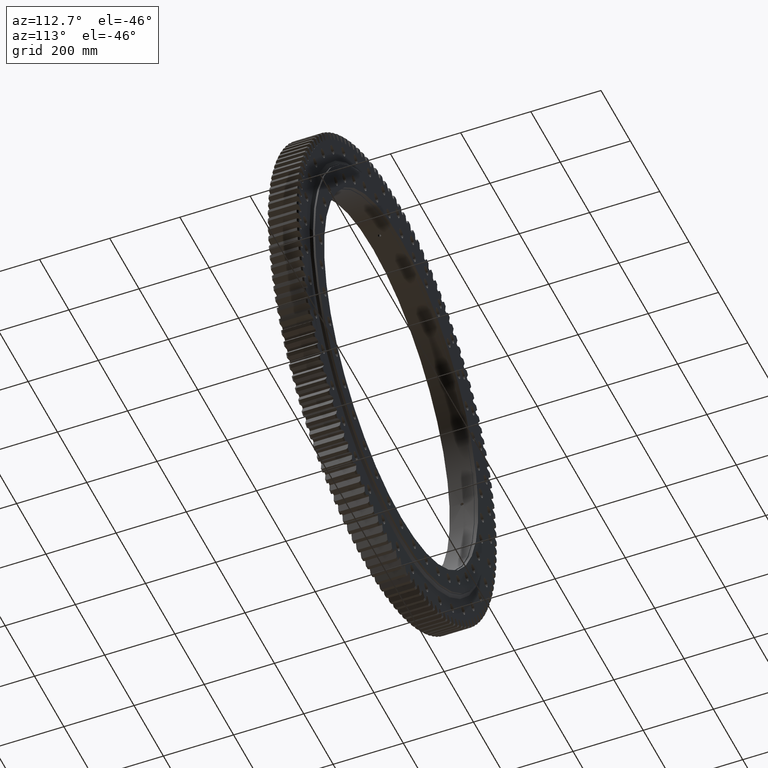
[diagram: clean part render]
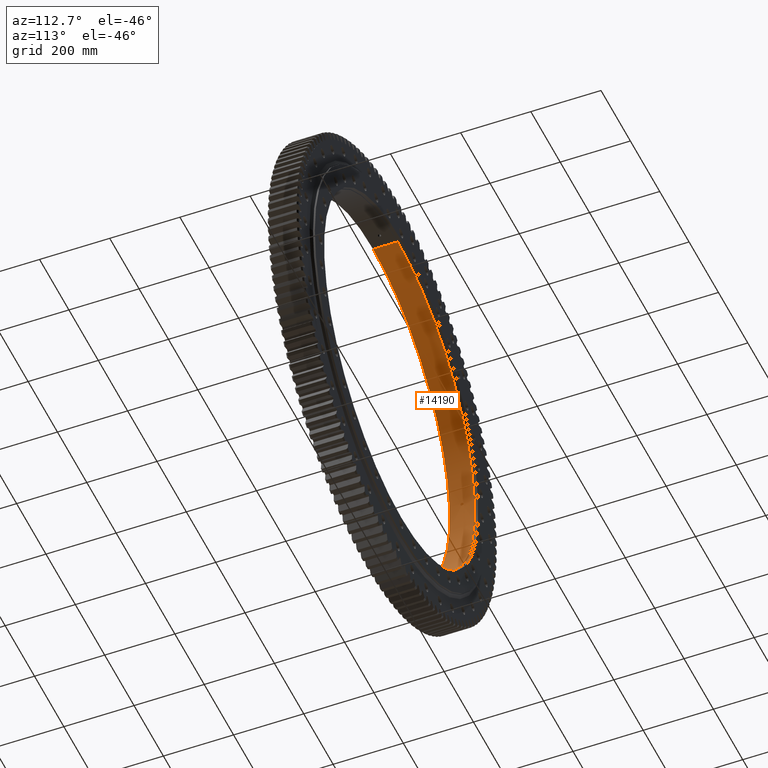
[diagram: same view with one face highlighted and labeled with its STEP entity id]
A machine part, auxiliary view. The second image highlights one B-rep face of the part: STEP entity #14190.
In plain terms, the highlighted cylindrical surface (partial cylindrical patch) has radius 522.5 mm, axis along (-0, 1, -0).
Its self-contained STEP definition (entity closure, byte-faithful):
#101 = CARTESIAN_POINT ( 'NONE',  ( -521.2230541935391600, 7.982461642902915100E-009, 36.50722910820498900 ) ) ;
#107 = VECTOR ( 'NONE', #29542, 1000.000000000000000 ) ;
#386 = VERTEX_POINT ( 'NONE', #101 ) ;
#965 = VERTEX_POINT ( 'NONE', #32015 ) ;
#972 = CARTESIAN_POINT ( 'NONE',  ( -42.43695594755188000, -4.271335784517487100, -520.7738753571798000 ) ) ;
#1247 = CARTESIAN_POINT ( 'NONE',  ( -521.0615364433853100, -3.904565419333106300, 38.74513019764189900 ) ) ;
#1378 = B_SPLINE_CURVE_WITH_KNOTS ( 'NONE', 3,
 ( #9614, #17718, #9475, #26800, #31847, #10021, #8146, #3492, #23364, #23498, #20928, #1247, #15079, #2290, #3865, #35615, #6444, #18939, #29808, #25698, #21770, #5953, #16173, #34088, #11863, #27575, #6089, #19968, #8376, #7038, #32823, #27871, #5612, #19335 ),
 .UNSPECIFIED., .F., .F.,
 ( 4, 2, 2, 2, 2, 2, 2, 2, 2, 2, 2, 2, 2, 2, 2, 2, 4 ),
 ( 0.01406912273268070900, 0.01494824441291817800, 0.01582736609315564900, 0.01670648777339311900, 0.01758560945363058700, 0.01846473113386805700, 0.01934385281410552800, 0.02022297449434299500, 0.02110209617458046500, 0.02198121785481793600, 0.02286033953505540300, 0.02373946121529287700, 0.02461858289553034400, 0.02549770457576781500, 0.02637682625600528500, 0.02725594793624275300, 0.02813506961648022300 ),
 .UNSPECIFIED. ) ;
#1535 = ORIENTED_EDGE ( 'NONE', *, *, #28585, .F. ) ;
#1562 = VECTOR ( 'NONE', #14069, 1000.000000000000000 ) ;
#2264 = EDGE_CURVE ( 'NONE', #30278, #18763, #12386, .T. ) ;
#2290 = CARTESIAN_POINT ( 'NONE',  ( -521.0014333689825900, -4.268830166289385300, 39.54529593804647200 ) ) ;
#2321 = EDGE_CURVE ( 'NONE', #15021, #34153, #30546, .T. ) ;
#2519 = CARTESIAN_POINT ( 'NONE',  ( 0.0000000000000000000, 34.99999999999993600, 522.5000000000000000 ) ) ;
#2521 = ORIENTED_EDGE ( 'NONE', *, *, #9805, .F. ) ;
#2629 = CARTESIAN_POINT ( 'NONE',  ( -520.6666234639387800, 3.576389863555923900, 43.73302788041540600 ) ) ;
#2740 = CARTESIAN_POINT ( 'NONE',  ( 0.0000000000000000000, -35.00000000000004300, 522.5000000000000000 ) ) ;
#2882 = CARTESIAN_POINT ( 'NONE',  ( 6.398779525544920300E-014, 31.02910628019322900, -522.5000000000000000 ) ) ;
#2991 = AXIS2_PLACEMENT_3D ( 'NONE', #13594, #3731, #4142 ) ;
#3055 = CARTESIAN_POINT ( 'NONE',  ( -38.25896087370888700, 3.578755136296426300, -521.0974586145877100 ) ) ;
#3283 = CARTESIAN_POINT ( 'NONE',  ( -36.73657784999501500, -1.449885485798992700, -521.2069516081423900 ) ) ;
#3492 = CARTESIAN_POINT ( 'NONE',  ( -521.1578291912394400, -2.745437740084375500, 37.42718471581505200 ) ) ;
#3731 = DIRECTION ( 'NONE',  ( -0.0000000000000000000, 1.000000000000000000, -2.727064569436389700E-017 ) ) ;
#3865 = CARTESIAN_POINT ( 'NONE',  ( -520.9797051835529400, -4.355728621484212600, 39.83063518860459600 ) ) ;
#3974 = CYLINDRICAL_SURFACE ( 'NONE', #2991, 522.5000000000000000 ) ;
#4142 = DIRECTION ( 'NONE',  ( 0.0000000000000000000, 2.656035944079321900E-017, 1.000000000000000000 ) ) ;
#4162 = CARTESIAN_POINT ( 'NONE',  ( -521.2230541935390400, 0.2936963170855738100, 36.50722910820499600 ) ) ;
#4188 = EDGE_CURVE ( 'NONE', #965, #386, #20767, .T. ) ;
#4697 = CARTESIAN_POINT ( 'NONE',  ( -40.40413346531357800, -4.470445865567148400, -520.9355418010818500 ) ) ;
#4778 = DIRECTION ( 'NONE',  ( 0.0000000000000000000, -1.000000000000000000, 0.0000000000000000000 ) ) ;
#5207 = CARTESIAN_POINT ( 'NONE',  ( 6.398779525544920300E-014, 34.99999999999993600, -522.5000000000000000 ) ) ;
#5612 = CARTESIAN_POINT ( 'NONE',  ( -520.5169223319884400, -0.2972598238607380700, 45.47948511180317900 ) ) ;
#5953 = CARTESIAN_POINT ( 'NONE',  ( -520.7292588011807800, -4.045623300547011200, 42.98096686910074700 ) ) ;
#6089 = CARTESIAN_POINT ( 'NONE',  ( -520.5967422455598800, -2.750358737038866200, 44.55680646927457600 ) ) ;
#6411 = CARTESIAN_POINT ( 'NONE',  ( -521.0974586145874800, 3.578755136296427200, 38.25896087371071300 ) ) ;
#6444 = CARTESIAN_POINT ( 'NONE',  ( -520.9128803760135000, -4.499748642551630900, 40.69532020410855500 ) ) ;
#6591 = CARTESIAN_POINT ( 'NONE',  ( -520.9796640727834100, 4.355941762590147100, 39.83118006561830500 ) ) ;
#7038 = CARTESIAN_POINT ( 'NONE',  ( -520.5370688136981700, -1.455748788596486600, 45.24845448250594200 ) ) ;
#7118 = CARTESIAN_POINT ( 'NONE',  ( -520.6124886286862600, 2.974981557475645700, 44.37262444089501700 ) ) ;
#7155 = ORIENTED_EDGE ( 'NONE', *, *, #17833, .T. ) ;
#7179 = CARTESIAN_POINT ( 'NONE',  ( -43.95882320256842500, 3.390113386120974700, -520.6475919262198900 ) ) ;
#7353 = CARTESIAN_POINT ( 'NONE',  ( -36.50722910820316300, 7.982461642902911800E-009, -521.2230541935392700 ) ) ;
#7464 = CARTESIAN_POINT ( 'NONE',  ( -44.88447306814901300, -2.259570265699948300, -520.5685940554084300 ) ) ;
#7955 = CARTESIAN_POINT ( 'NONE',  ( -520.5293971237021000, 1.164867514309320800, 45.33651947221063900 ) ) ;
#8146 = CARTESIAN_POINT ( 'NONE',  ( -521.1813023166425900, -2.252554415507585200, 37.09888406145476800 ) ) ;
#8324 = CARTESIAN_POINT ( 'NONE',  ( -43.95691874128910100, -3.391801968467735900, -520.6477528050149900 ) ) ;
#8351 = CARTESIAN_POINT ( 'NONE',  ( -520.7964416032565400, 4.355842742466288400, 42.15923132697815800 ) ) ;
#8376 = CARTESIAN_POINT ( 'NONE',  ( -520.5564947746983100, -1.997037332466416100, 45.02441993065205100 ) ) ;
#8541 = VERTEX_POINT ( 'NONE', #5207 ) ;
#8574 = CARTESIAN_POINT ( 'NONE',  ( -41.28688208000004100, -4.500248152740598900, -520.8663277619909900 ) ) ;
#8686 = AXIS2_PLACEMENT_3D ( 'NONE', #21423, #4778, #24237 ) ;
#8705 = CARTESIAN_POINT ( 'NONE',  ( -45.24845448250408700, -1.455748788596486600, -520.5370688136984000 ) ) ;
#8783 = CARTESIAN_POINT ( 'NONE',  ( -40.40665138701025000, 4.470844854348499100, -520.9353470503789400 ) ) ;
#8866 = CARTESIAN_POINT ( 'NONE',  ( -37.61295950751724600, -2.972154230457297900, -521.1444696501977200 ) ) ;
#8980 = CARTESIAN_POINT ( 'NONE',  ( -39.83063518860277000, -4.355728621484211700, -520.9797051835530500 ) ) ;
#9037 = CARTESIAN_POINT ( 'NONE',  ( -45.47948511180133100, -0.2972598238607379600, -520.5169223319885500 ) ) ;
#9086 = CARTESIAN_POINT ( 'NONE',  ( -38.74533045591296300, 3.904600838382397100, -521.0615211561681700 ) ) ;
#9198 = CARTESIAN_POINT ( 'NONE',  ( -36.73617184184587400, 1.449118756769781400, -521.2069804173640900 ) ) ;
#9270 = CARTESIAN_POINT ( 'NONE',  ( -45.47948511180132400, 7.982460075569100900E-009, -520.5169223319884400 ) ) ;
#9307 = CARTESIAN_POINT ( 'NONE',  ( -41.57958242286444100, -4.471227370604652600, -520.8430387172167000 ) ) ;
#9470 = CARTESIAN_POINT ( 'NONE',  ( -36.50722910820316300, 7.982461642902911800E-009, -521.2230541935392700 ) ) ;
#9475 = CARTESIAN_POINT ( 'NONE',  ( -521.2210677606559600, -0.5854536415347052500, 36.53562412608194900 ) ) ;
#9614 = CARTESIAN_POINT ( 'NONE',  ( -521.2230541935391600, 7.982461642902915100E-009, 36.50722910820498900 ) ) ;
#9627 = CARTESIAN_POINT ( 'NONE',  ( -520.8661524830339400, 4.499895700381828500, 41.28907051994509200 ) ) ;
#9805 = EDGE_CURVE ( 'NONE', #26069, #15021, #29670, .T. ) ;
#9944 = CARTESIAN_POINT ( 'NONE',  ( -520.5369077978166400, 1.450671737367960100, 45.25030807639516400 ) ) ;
#10021 = CARTESIAN_POINT ( 'NONE',  ( -521.1911463723286000, -1.991446762146140500, 36.96013392669639300 ) ) ;
#10127 = CARTESIAN_POINT ( 'NONE',  ( -521.2129448723098900, 1.168562155700871200, 36.65132200568693600 ) ) ;
#10326 = CARTESIAN_POINT ( 'NONE',  ( -520.9122109962195300, 4.500103750323881400, 40.70386445916699400 ) ) ;
#10516 = CARTESIAN_POINT ( 'NONE',  ( -39.83118006561645800, 4.355941762590142700, -520.9796640727836300 ) ) ;
#11119 = CARTESIAN_POINT ( 'NONE',  ( -44.88748624617986100, 2.254170811191634500, -520.5683338920407600 ) ) ;
#11250 = CARTESIAN_POINT ( 'NONE',  ( -44.37262444089318300, 2.974981557475644000, -520.6124886286863800 ) ) ;
#11777 = ORIENTED_EDGE ( 'NONE', *, *, #2321, .F. ) ;
#11863 = CARTESIAN_POINT ( 'NONE',  ( -520.6477528050148700, -3.391801968467733200, 43.95691874129093400 ) ) ;
#12231 = CARTESIAN_POINT ( 'NONE',  ( -43.73302788041358000, 3.576389863555924400, -520.6666234639386600 ) ) ;
#12245 = FACE_BOUND ( 'NONE', #26895, .T. ) ;
#12386 = B_SPLINE_CURVE_WITH_KNOTS ( 'NONE', 3,
 ( #9270, #14360, #35091, #30464, #17557, #27781, #11119, #30569, #11250, #7179, #12231, #13200, #23767, #19204, #17719, #22324, #31574, #17553, #8783, #10516, #33663, #27138, #9086, #3055, #13314, #12708, #13431, #19958, #31064, #9198, #22392, #18430, #20709, #34562 ),
 .UNSPECIFIED., .F., .F.,
 ( 4, 2, 2, 2, 2, 2, 2, 2, 2, 2, 2, 2, 2, 2, 2, 2, 4 ),
 ( 1.438443450805533400E-018, 0.0008793201707925461800, 0.001758640341585090600, 0.002637960512377634600, 0.003517280683170179100, 0.004396600853962724000, 0.005275921024755268400, 0.006155241195547813700, 0.007034561366340358200, 0.007913881537132903500, 0.008793201707925447900, 0.009672521878717992400, 0.01055184204951053700, 0.01143116222030308300, 0.01231048239109562700, 0.01318980256188817000, 0.01406912273268071500 ),
 .UNSPECIFIED. ) ;
#12708 = CARTESIAN_POINT ( 'NONE',  ( -37.61317475582793400, 2.972766753993243000, -521.1444552387478100 ) ) ;
#12766 = CARTESIAN_POINT ( 'NONE',  ( -45.33441801012384800, -1.173646548506637200, -520.5295802677920800 ) ) ;
#12971 = EDGE_CURVE ( 'NONE', #18763, #30278, #34653, .T. ) ;
#13093 = CARTESIAN_POINT ( 'NONE',  ( -38.74513019764008000, -3.904565419333109900, -521.0615364433854200 ) ) ;
#13179 = EDGE_CURVE ( 'NONE', #386, #965, #1378, .T. ) ;
#13200 = CARTESIAN_POINT ( 'NONE',  ( -43.24273119766942100, 3.905344831416401400, -520.7075731305376400 ) ) ;
#13314 = CARTESIAN_POINT ( 'NONE',  ( -38.03226902857609600, 3.392750171269698400, -521.1140380510216800 ) ) ;
#13431 = CARTESIAN_POINT ( 'NONE',  ( -37.42707552026094900, 2.744955736329137700, -521.1578365274967800 ) ) ;
#13552 = CARTESIAN_POINT ( 'NONE',  ( -36.65036934035649100, -1.165413915667370400, -521.2130118627658200 ) ) ;
#13594 = CARTESIAN_POINT ( 'NONE',  ( 0.0000000000000000000, 31.02910628019324300, -1.692367527159823000E-015 ) ) ;
#14046 = CARTESIAN_POINT ( 'NONE',  ( -520.5169223319883300, 7.982459886697629800E-009, 45.47948511180315700 ) ) ;
#14069 = DIRECTION ( 'NONE',  ( -0.0000000000000000000, 1.000000000000000000, -2.727064569436389700E-017 ) ) ;
#14159 = CARTESIAN_POINT ( 'NONE',  ( -520.5564251717152000, 1.995681479349310700, 45.02522596462567600 ) ) ;
#14190 = ADVANCED_FACE ( 'NONE', ( #33531, #12245, #35304 ), #3974, .F. ) ;
#14360 = CARTESIAN_POINT ( 'NONE',  ( -45.47948511180133800, 0.2973269559830137900, -520.5169223319885500 ) ) ;
#15021 = VERTEX_POINT ( 'NONE', #2740 ) ;
#15049 = EDGE_LOOP ( 'NONE', ( #24330, #18129 ) ) ;
#15079 = CARTESIAN_POINT ( 'NONE',  ( -521.0423288097165400, -4.042876200229308400, 39.00276390089839400 ) ) ;
#15190 = CARTESIAN_POINT ( 'NONE',  ( -521.2230541935391600, 7.982461642902915100E-009, 36.50722910820498900 ) ) ;
#15494 = CARTESIAN_POINT ( 'NONE',  ( -520.9353470503788200, 4.470844854348500900, 40.40665138701208300 ) ) ;
#15512 = CARTESIAN_POINT ( 'NONE',  ( -44.55680646927274300, -2.750358737038870700, -520.5967422455598800 ) ) ;
#15863 = CARTESIAN_POINT ( 'NONE',  ( -42.98096686909893500, -4.045623300547010400, -520.7292588011807800 ) ) ;
#16173 = CARTESIAN_POINT ( 'NONE',  ( -520.7079100526783600, -3.907536526290678900, 43.23866525861184600 ) ) ;
#16658 = CARTESIAN_POINT ( 'NONE',  ( -520.8429942596719700, 4.471354146412037900, 41.58015997221984600 ) ) ;
#17142 = CARTESIAN_POINT ( 'NONE',  ( -521.1578365274965600, 2.744955736329140400, 37.42707552026277500 ) ) ;
#17147 = CARTESIAN_POINT ( 'NONE',  ( -45.47948511180132400, 7.982460075569100900E-009, -520.5169223319884400 ) ) ;
#17217 = LINE ( 'NONE', #2882, #1562 ) ;
#17553 = CARTESIAN_POINT ( 'NONE',  ( -40.70386445916516000, 4.500103750323880500, -520.9122109962195300 ) ) ;
#17557 = CARTESIAN_POINT ( 'NONE',  ( -45.25030807639333100, 1.450671737367959000, -520.5369077978168700 ) ) ;
#17718 = CARTESIAN_POINT ( 'NONE',  ( -521.2230541935390400, -0.2936300045140722800, 36.50722910820499600 ) ) ;
#17719 = CARTESIAN_POINT ( 'NONE',  ( -42.15923132697632500, 4.355842742466287600, -520.7964416032567700 ) ) ;
#17833 = EDGE_CURVE ( 'NONE', #26069, #8541, #17217, .T. ) ;
#17866 = CARTESIAN_POINT ( 'NONE',  ( -521.1444552387477000, 2.972766753993244700, 37.61317475582976800 ) ) ;
#17936 = CARTESIAN_POINT ( 'NONE',  ( -521.1910492257026100, 1.994554134339262800, 36.96150652221226800 ) ) ;
#18114 = EDGE_LOOP ( 'NONE', ( #2521, #7155, #1535, #11777 ) ) ;
#18129 = ORIENTED_EDGE ( 'NONE', *, *, #12971, .T. ) ;
#18430 = CARTESIAN_POINT ( 'NONE',  ( -36.53658739322725800, 0.5919615105904786300, -521.2210002377944400 ) ) ;
#18763 = VERTEX_POINT ( 'NONE', #7353 ) ;
#18939 = CARTESIAN_POINT ( 'NONE',  ( -520.8663277619909900, -4.500248152740597100, 41.28688208000186000 ) ) ;
#19154 = CARTESIAN_POINT ( 'NONE',  ( -38.25707416389045100, -3.577391925666826300, -521.0975975296681800 ) ) ;
#19204 = CARTESIAN_POINT ( 'NONE',  ( -42.44189346128564500, 4.269501406712616500, -520.7734718713392100 ) ) ;
#19335 = CARTESIAN_POINT ( 'NONE',  ( -520.5169223319883300, 7.982459886697629800E-009, 45.47948511180315700 ) ) ;
#19392 = CARTESIAN_POINT ( 'NONE',  ( -521.1810810616993900, 2.257525261012221000, 37.10198511371591900 ) ) ;
#19958 = CARTESIAN_POINT ( 'NONE',  ( -37.10198511371410000, 2.257525261012218300, -521.1810810616997300 ) ) ;
#19968 = CARTESIAN_POINT ( 'NONE',  ( -520.5685940554083100, -2.259570265699943900, 44.88447306815083200 ) ) ;
#20401 = CARTESIAN_POINT ( 'NONE',  ( -42.15272805371930100, -4.357378976210391400, -520.7969663623946400 ) ) ;
#20652 = CARTESIAN_POINT ( 'NONE',  ( -520.7734718713389800, 4.269501406712616500, 42.44189346128746400 ) ) ;
#20709 = CARTESIAN_POINT ( 'NONE',  ( -36.50722910820316300, 0.2936963170855723700, -521.2230541935390400 ) ) ;
#20767 = B_SPLINE_CURVE_WITH_KNOTS ( 'NONE', 3,
 ( #14046, #21492, #21972, #7955, #9944, #14159, #24074, #32097, #7118, #30835, #2629, #34867, #27916, #20652, #8351, #16658, #9627, #10326, #15494, #6591, #27802, #27851, #25834, #6411, #35025, #17866, #17142, #19392, #17936, #29087, #10127, #26451, #4162, #15190 ),
 .UNSPECIFIED., .F., .F.,
 ( 4, 2, 2, 2, 2, 2, 2, 2, 2, 2, 2, 2, 2, 2, 2, 2, 4 ),
 ( 1.621991334216079600E-018, 0.0008793201707925456400, 0.001758640341585089500, 0.002637960512377633800, 0.003517280683170177800, 0.004396600853962722200, 0.005275921024755265800, 0.006155241195547809400, 0.007034561366340353800, 0.007913881537132898300, 0.008793201707925442700, 0.009672521878717987200, 0.01055184204951053000, 0.01143116222030307400, 0.01231048239109561700, 0.01318980256188816300, 0.01406912273268070900 ),
 .UNSPECIFIED. ) ;
#20928 = CARTESIAN_POINT ( 'NONE',  ( -521.0975975296680600, -3.577391925666824500, 38.25707416389226300 ) ) ;
#21423 = CARTESIAN_POINT ( 'NONE',  ( 0.0000000000000000000, 34.99999999999993600, -1.800656362882646300E-015 ) ) ;
#21492 = CARTESIAN_POINT ( 'NONE',  ( -520.5169223319885500, 0.2973269559830139000, 45.47948511180316400 ) ) ;
#21770 = CARTESIAN_POINT ( 'NONE',  ( -520.7738753571798000, -4.271335784517488900, 42.43695594755370600 ) ) ;
#21972 = CARTESIAN_POINT ( 'NONE',  ( -520.5194644525501000, 0.5896845411252155100, 45.45041687211933400 ) ) ;
#22324 = CARTESIAN_POINT ( 'NONE',  ( -41.58015997221802700, 4.471354146412037900, -520.8429942596720800 ) ) ;
#22392 = CARTESIAN_POINT ( 'NONE',  ( -36.65132200568511000, 1.168562155700867600, -521.2129448723098900 ) ) ;
#22772 = CARTESIAN_POINT ( 'NONE',  ( -36.96013392669456000, -1.991446762146137800, -521.1911463723287200 ) ) ;
#23364 = CARTESIAN_POINT ( 'NONE',  ( -521.1444696501976100, -2.972154230457297000, 37.61295950751907200 ) ) ;
#23493 = CARTESIAN_POINT ( 'NONE',  ( -36.50722910820314800, -0.2936300045140724500, -521.2230541935391600 ) ) ;
#23498 = CARTESIAN_POINT ( 'NONE',  ( -521.1144611673422600, -3.387315542913415600, 38.02645568772452800 ) ) ;
#23767 = CARTESIAN_POINT ( 'NONE',  ( -42.98165462434043600, 4.045121518116484800, -520.7292009204605800 ) ) ;
#24074 = CARTESIAN_POINT ( 'NONE',  ( -520.5683338920405300, 2.254170811191635400, 44.88748624618167300 ) ) ;
#24237 = DIRECTION ( 'NONE',  ( 0.0000000000000000000, 0.0000000000000000000, 1.000000000000000000 ) ) ;
#24330 = ORIENTED_EDGE ( 'NONE', *, *, #2264, .T. ) ;
#24920 = CARTESIAN_POINT ( 'NONE',  ( -45.45042653223762800, -0.5914362353935065400, -520.5194637264952500 ) ) ;
#25698 = CARTESIAN_POINT ( 'NONE',  ( -520.7969663623945300, -4.357378976210391400, 42.15272805372111300 ) ) ;
#25834 = CARTESIAN_POINT ( 'NONE',  ( -521.0615211561680600, 3.904600838382399400, 38.74533045591479000 ) ) ;
#26069 = VERTEX_POINT ( 'NONE', #32638 ) ;
#26160 = CIRCLE ( 'NONE', #8686, 522.5000000000000000 ) ;
#26184 = DIRECTION ( 'NONE',  ( -0.0000000000000000000, 1.000000000000000000, -2.727064569436389700E-017 ) ) ;
#26451 = CARTESIAN_POINT ( 'NONE',  ( -521.2210002377944400, 0.5919615105904808500, 36.53658739322908400 ) ) ;
#26800 = CARTESIAN_POINT ( 'NONE',  ( -521.2130118627658200, -1.165413915667369700, 36.65036934035831000 ) ) ;
#26895 = EDGE_LOOP ( 'NONE', ( #29311, #29491 ) ) ;
#26951 = CARTESIAN_POINT ( 'NONE',  ( -39.54529593804466000, -4.268830166289388800, -521.0014333689825900 ) ) ;
#27138 = CARTESIAN_POINT ( 'NONE',  ( -39.00816230308826200, 4.045565010946058100, -521.0419248841639000 ) ) ;
#27575 = CARTESIAN_POINT ( 'NONE',  ( -520.6126141455596300, -2.976678123065429600, 44.37115277595228900 ) ) ;
#27640 = CARTESIAN_POINT ( 'NONE',  ( -44.37115277595046300, -2.976678123065431300, -520.6126141455597500 ) ) ;
#27781 = CARTESIAN_POINT ( 'NONE',  ( -45.02522596462386400, 1.995681479349309800, -520.5564251717153200 ) ) ;
#27802 = CARTESIAN_POINT ( 'NONE',  ( -521.0009654584846400, 4.270948587163581500, 39.55146273635937600 ) ) ;
#27851 = CARTESIAN_POINT ( 'NONE',  ( -521.0419248841637900, 4.045565010946059900, 39.00816230309009600 ) ) ;
#27871 = CARTESIAN_POINT ( 'NONE',  ( -520.5194637264950200, -0.5914362353935023200, 45.45042653223944000 ) ) ;
#27916 = CARTESIAN_POINT ( 'NONE',  ( -520.7292009204607000, 4.045121518116484800, 42.98165462434227600 ) ) ;
#28353 = CARTESIAN_POINT ( 'NONE',  ( -38.02645568772269500, -3.387315542913417400, -521.1144611673422600 ) ) ;
#28468 = CARTESIAN_POINT ( 'NONE',  ( -45.02441993065021800, -1.997037332466417000, -520.5564947746984200 ) ) ;
#28585 = EDGE_CURVE ( 'NONE', #34153, #8541, #26160, .T. ) ;
#28805 = CARTESIAN_POINT ( 'NONE',  ( -39.00276390089654700, -4.042876200229311900, -521.0423288097166500 ) ) ;
#29087 = CARTESIAN_POINT ( 'NONE',  ( -521.2069804173642100, 1.449118756769779900, 36.73617184184770700 ) ) ;
#29311 = ORIENTED_EDGE ( 'NONE', *, *, #4188, .T. ) ;
#29491 = ORIENTED_EDGE ( 'NONE', *, *, #13179, .T. ) ;
#29542 = DIRECTION ( 'NONE',  ( -0.0000000000000000000, 1.000000000000000000, -2.727064569436389700E-017 ) ) ;
#29670 = CIRCLE ( 'NONE', #30005, 522.5000000000000000 ) ;
#29808 = CARTESIAN_POINT ( 'NONE',  ( -520.8430387172167000, -4.471227370604653500, 41.57958242286626700 ) ) ;
#29943 = CARTESIAN_POINT ( 'NONE',  ( 0.0000000000000000000, -35.00000000000005700, 1.082888357228264900E-016 ) ) ;
#29970 = CARTESIAN_POINT ( 'NONE',  ( -40.69532020410673600, -4.499748642551630900, -520.9128803760135000 ) ) ;
#30005 = AXIS2_PLACEMENT_3D ( 'NONE', #29943, #26184, #34972 ) ;
#30186 = CARTESIAN_POINT ( 'NONE',  ( -36.53562412608011600, -0.5854536415347063600, -521.2210677606559600 ) ) ;
#30278 = VERTEX_POINT ( 'NONE', #17147 ) ;
#30464 = CARTESIAN_POINT ( 'NONE',  ( -45.33651947220881300, 1.164867514309320300, -520.5293971237024400 ) ) ;
#30546 = LINE ( 'NONE', #35230, #107 ) ;
#30569 = CARTESIAN_POINT ( 'NONE',  ( -44.56204988042311800, 2.743369090361458700, -520.5962930938819700 ) ) ;
#30835 = CARTESIAN_POINT ( 'NONE',  ( -520.6475919262198900, 3.390113386120976900, 43.95882320257025100 ) ) ;
#31064 = CARTESIAN_POINT ( 'NONE',  ( -36.96150652221042800, 1.994554134339264500, -521.1910492257027300 ) ) ;
#31574 = CARTESIAN_POINT ( 'NONE',  ( -41.28907051994325900, 4.499895700381828500, -520.8661524830341700 ) ) ;
#31847 = CARTESIAN_POINT ( 'NONE',  ( -521.2069516081423900, -1.449885485798995800, 36.73657784999685600 ) ) ;
#32015 = CARTESIAN_POINT ( 'NONE',  ( -520.5169223319883300, 7.982459886697629800E-009, 45.47948511180315700 ) ) ;
#32097 = CARTESIAN_POINT ( 'NONE',  ( -520.5962930938816300, 2.743369090361459200, 44.56204988042494400 ) ) ;
#32500 = CARTESIAN_POINT ( 'NONE',  ( -43.23866525861002700, -3.907536526290677200, -520.7079100526785900 ) ) ;
#32638 = CARTESIAN_POINT ( 'NONE',  ( 6.398779525544920300E-014, -35.00000000000007100, -522.5000000000000000 ) ) ;
#32823 = CARTESIAN_POINT ( 'NONE',  ( -520.5295802677918600, -1.173646548506632500, 45.33441801012567400 ) ) ;
#32986 = CARTESIAN_POINT ( 'NONE',  ( -37.09888406145293500, -2.252554415507581600, -521.1813023166427000 ) ) ;
#33531 = FACE_BOUND ( 'NONE', #15049, .T. ) ;
#33663 = CARTESIAN_POINT ( 'NONE',  ( -39.55146273635755000, 4.270948587163580600, -521.0009654584848700 ) ) ;
#34088 = CARTESIAN_POINT ( 'NONE',  ( -520.6672208942342200, -3.581692240166547400, 43.72590594886651900 ) ) ;
#34153 = VERTEX_POINT ( 'NONE', #2519 ) ;
#34562 = CARTESIAN_POINT ( 'NONE',  ( -36.50722910820316300, 7.982461642902911800E-009, -521.2230541935392700 ) ) ;
#34653 = B_SPLINE_CURVE_WITH_KNOTS ( 'NONE', 3,
 ( #9470, #23493, #30186, #13552, #3283, #22772, #32986, #35799, #8866, #28353, #19154, #13093, #28805, #26951, #8980, #4697, #29970, #8574, #9307, #20401, #972, #15863, #32500, #34884, #8324, #27640, #15512, #7464, #28468, #8705, #12766, #24920, #9037, #35961 ),
 .UNSPECIFIED., .F., .F.,
 ( 4, 2, 2, 2, 2, 2, 2, 2, 2, 2, 2, 2, 2, 2, 2, 2, 4 ),
 ( 0.01406912273268071500, 0.01494824441291818500, 0.01582736609315565600, 0.01670648777339312600, 0.01758560945363059300, 0.01846473113386806400, 0.01934385281410553500, 0.02022297449434300500, 0.02110209617458047600, 0.02198121785481794300, 0.02286033953505541400, 0.02373946121529288400, 0.02461858289553035500, 0.02549770457576782500, 0.02637682625600529200, 0.02725594793624276300, 0.02813506961648023400 ),
 .UNSPECIFIED. ) ;
#34867 = CARTESIAN_POINT ( 'NONE',  ( -520.7075731305375300, 3.905344831416399700, 43.24273119767127600 ) ) ;
#34884 = CARTESIAN_POINT ( 'NONE',  ( -43.72590594886470000, -3.581692240166545600, -520.6672208942342200 ) ) ;
#34972 = DIRECTION ( 'NONE',  ( 0.0000000000000000000, 2.656035944079321900E-017, 1.000000000000000000 ) ) ;
#35025 = CARTESIAN_POINT ( 'NONE',  ( -521.1140380510215700, 3.392750171269697900, 38.03226902857791500 ) ) ;
#35091 = CARTESIAN_POINT ( 'NONE',  ( -45.45041687211752900, 0.5896845411252150700, -520.5194644525503200 ) ) ;
#35230 = CARTESIAN_POINT ( 'NONE',  ( 0.0000000000000000000, 31.02910628019325800, 522.5000000000000000 ) ) ;
#35304 = FACE_OUTER_BOUND ( 'NONE', #18114, .T. ) ;
#35615 = CARTESIAN_POINT ( 'NONE',  ( -520.9355418010815100, -4.470445865567148400, 40.40413346531539700 ) ) ;
#35799 = CARTESIAN_POINT ( 'NONE',  ( -37.42718471581323300, -2.745437740084373200, -521.1578291912395600 ) ) ;
#35961 = CARTESIAN_POINT ( 'NONE',  ( -45.47948511180132400, 7.982460075569100900E-009, -520.5169223319884400 ) ) ;